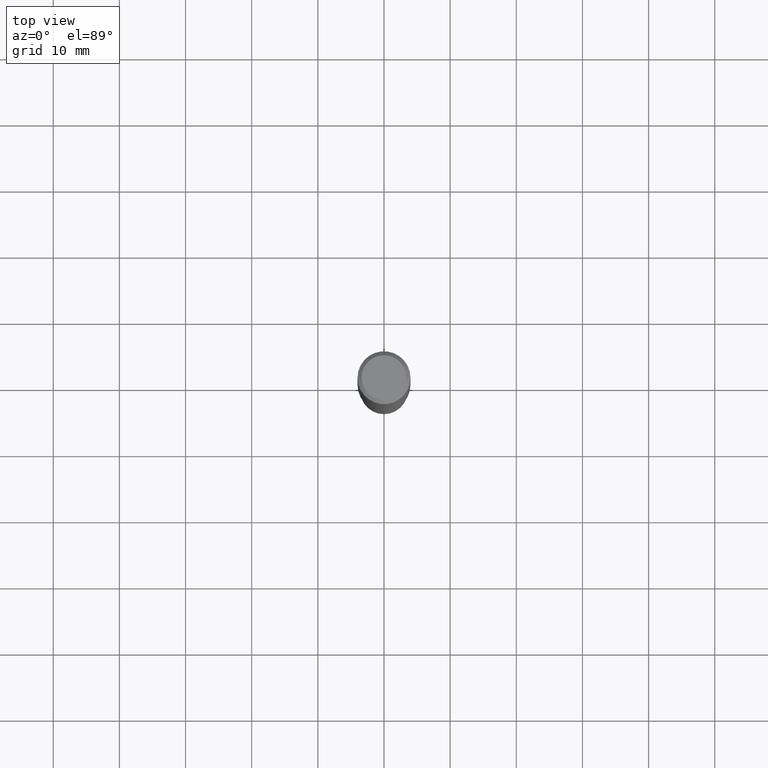
[diagram: clean part render]
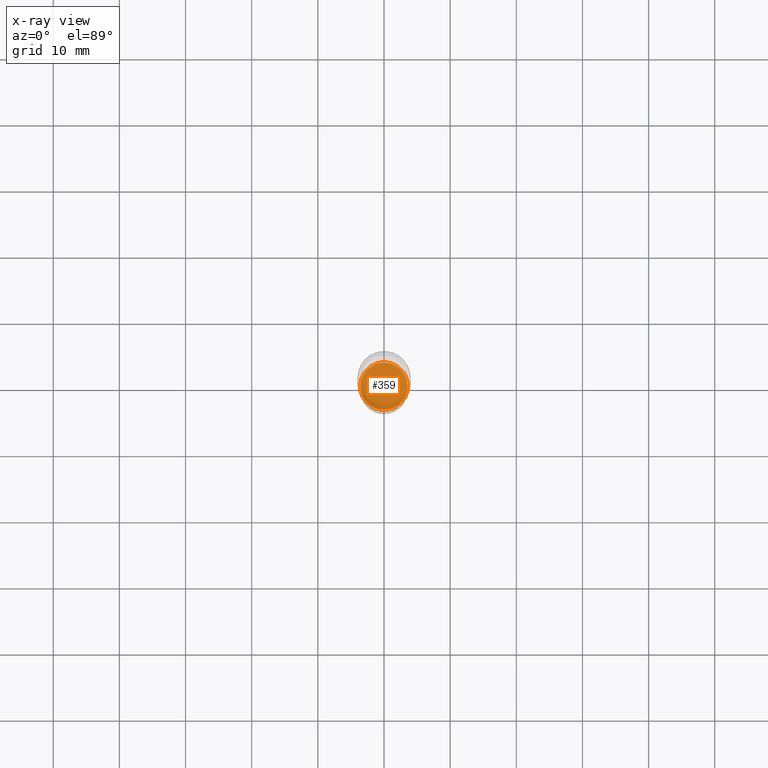
[diagram: x-ray — body ghosted, one internal face saturated and labeled with its STEP entity id]
A machine part, top view, then the same camera in x-ray: the body is ghosted and one INTERNAL B-rep face — a face not visible from any outside direction — is saturated and labeled: STEP entity #359.
In plain terms, the highlighted planar face has unit normal (-0, 0, 1).
Its self-contained STEP definition (entity closure, byte-faithful):
#14 = DIRECTION ( 'NONE',  ( -2.438088387897960049E-29, 3.491481338843145188E-15, 1.000000000000000000 ) ) ;
#20 = ORIENTED_EDGE ( 'NONE', *, *, #185, .F. ) ;
#29 = VERTEX_POINT ( 'NONE', #311 ) ;
#31 = CIRCLE ( 'NONE', #446, 0.1412499999999999867 ) ;
#34 = VERTEX_POINT ( 'NONE', #82 ) ;
#47 = FACE_OUTER_BOUND ( 'NONE', #158, .T. ) ;
#59 = CIRCLE ( 'NONE', #285, 0.1412499999999999867 ) ;
#82 = CARTESIAN_POINT ( 'NONE',  ( 0.1412499999999999867, -1.129564042742534161E-14, -2.952700000000000546 ) ) ;
#107 = DIRECTION ( 'NONE',  ( 1.000000000000000000, -6.982962677686263555E-15, 0.000000000000000000 ) ) ;
#147 = DIRECTION ( 'NONE',  ( -2.445468806185136597E-29, 3.491481338843145583E-15, 1.000000000000000000 ) ) ;
#158 = EDGE_LOOP ( 'NONE', ( #20, #334 ) ) ;
#173 = DIRECTION ( 'NONE',  ( 1.000000000000000000, -6.982962677686263555E-15, 0.000000000000000000 ) ) ;
#185 = EDGE_CURVE ( 'NONE', #34, #29, #59, .T. ) ;
#197 = DIRECTION ( 'NONE',  ( 1.000000000000000000, -6.982962677686265922E-15, 4.876176775795935793E-29 ) ) ;
#206 = CARTESIAN_POINT ( 'NONE',  ( 7.220735744022853640E-29, -1.030929694920215659E-14, -2.952700000000000546 ) ) ;
#227 = AXIS2_PLACEMENT_3D ( 'NONE', #348, #14, #197 ) ;
#234 = PLANE ( 'NONE',  #227 ) ;
#285 = AXIS2_PLACEMENT_3D ( 'NONE', #206, #384, #173 ) ;
#310 = EDGE_CURVE ( 'NONE', #29, #34, #31, .T. ) ;
#311 = CARTESIAN_POINT ( 'NONE',  ( -0.1412499999999999867, -9.303006107766902397E-15, -2.952700000000000546 ) ) ;
#334 = ORIENTED_EDGE ( 'NONE', *, *, #310, .F. ) ;
#348 = CARTESIAN_POINT ( 'NONE',  ( 7.220735744022853640E-29, -1.030929694920215659E-14, -2.952700000000000546 ) ) ;
#359 = ADVANCED_FACE ( 'NONE', ( #47 ), #234, .F. ) ;
#384 = DIRECTION ( 'NONE',  ( -2.445468806185136597E-29, 3.491481338843145583E-15, 1.000000000000000000 ) ) ;
#446 = AXIS2_PLACEMENT_3D ( 'NONE', #458, #147, #107 ) ;
#458 = CARTESIAN_POINT ( 'NONE',  ( 7.220735744022853640E-29, -1.030929694920215659E-14, -2.952700000000000546 ) ) ;